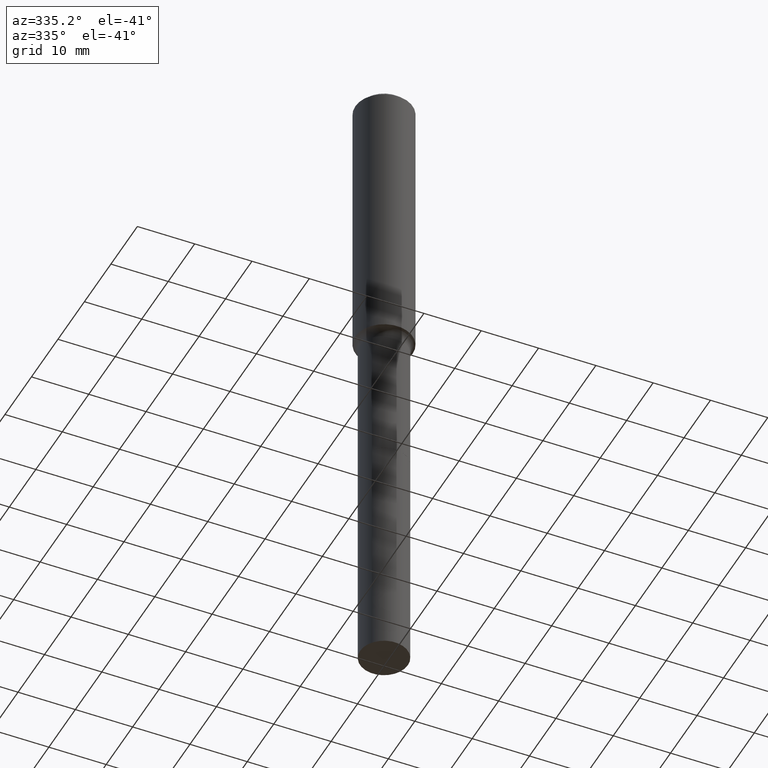
[diagram: clean part render]
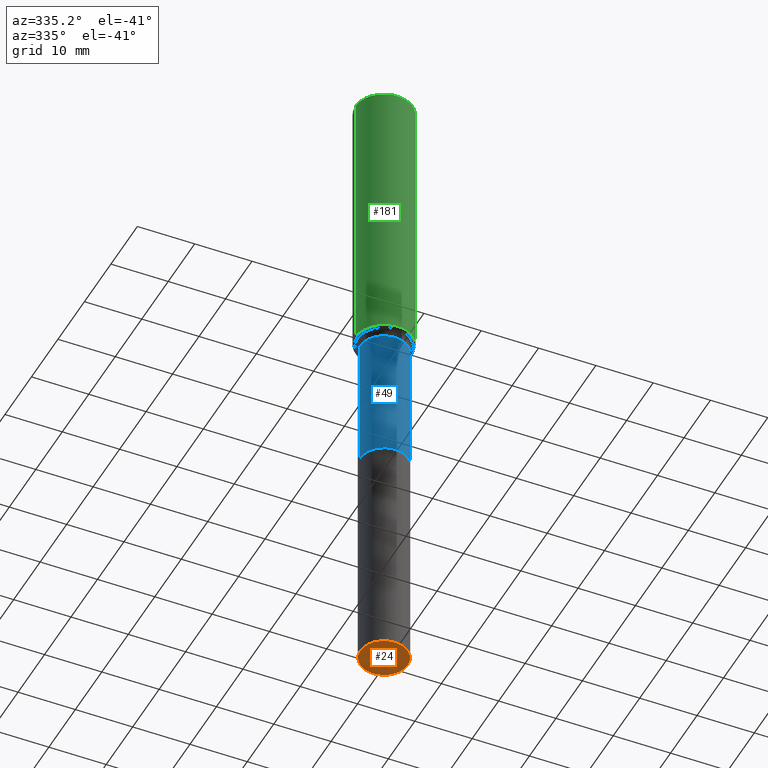
[diagram: same view with three faces highlighted in distinct colors, each labeled with its STEP entity id]
A machine part, auxiliary view with three faces highlighted in distinct colors.
Their STEP definitions:

[orange] entity #24 — the highlighted planar face has unit normal (0, -0, -1).
#17 = DIRECTION ( 'NONE',  ( 2.438088387897960049E-29, -3.491481338843145188E-15, -1.000000000000000000 ) ) ;
#24 = ADVANCED_FACE ( 'NONE', ( #415 ), #375, .T. ) ;
#26 = AXIS2_PLACEMENT_3D ( 'NONE', #302, #17, #139 ) ;
#51 = AXIS2_PLACEMENT_3D ( 'NONE', #76, #67, #235 ) ;
#67 = DIRECTION ( 'NONE',  ( -2.445468806185136597E-29, 3.491481338843145583E-15, 1.000000000000000000 ) ) ;
#73 = CARTESIAN_POINT ( 'NONE',  ( 0.1640500000000000014, -1.695358593702065635E-14, -4.527599999999999625 ) ) ;
#76 = CARTESIAN_POINT ( 'NONE',  ( 1.107210456688382298E-28, -1.580803090974622389E-14, -4.527599999999999625 ) ) ;
#81 = EDGE_LOOP ( 'NONE', ( #367, #265 ) ) ;
#139 = DIRECTION ( 'NONE',  ( -1.000000000000000000, 6.982962677686265922E-15, -4.876176775795935793E-29 ) ) ;
#172 = VERTEX_POINT ( 'NONE', #73 ) ;
#189 = EDGE_CURVE ( 'NONE', #406, #172, #294, .T. ) ;
#191 = AXIS2_PLACEMENT_3D ( 'NONE', #248, #205, #439 ) ;
#205 = DIRECTION ( 'NONE',  ( -2.445468806185136597E-29, 3.491481338843145583E-15, 1.000000000000000000 ) ) ;
#219 = EDGE_CURVE ( 'NONE', #172, #406, #409, .T. ) ;
#235 = DIRECTION ( 'NONE',  ( 1.000000000000000000, -6.982962677686270655E-15, 0.000000000000000000 ) ) ;
#248 = CARTESIAN_POINT ( 'NONE',  ( 1.107210456688382298E-28, -1.580803090974622389E-14, -4.527599999999999625 ) ) ;
#265 = ORIENTED_EDGE ( 'NONE', *, *, #189, .F. ) ;
#294 = CIRCLE ( 'NONE', #51, 0.1640500000000000014 ) ;
#302 = CARTESIAN_POINT ( 'NONE',  ( 1.107210456688382298E-28, -1.580803090974622389E-14, -4.527599999999999625 ) ) ;
#367 = ORIENTED_EDGE ( 'NONE', *, *, #219, .F. ) ;
#375 = PLANE ( 'NONE',  #26 ) ;
#406 = VERTEX_POINT ( 'NONE', #456 ) ;
#409 = CIRCLE ( 'NONE', #191, 0.1640500000000000014 ) ;
#415 = FACE_OUTER_BOUND ( 'NONE', #81, .T. ) ;
#439 = DIRECTION ( 'NONE',  ( 1.000000000000000000, -6.982962677686270655E-15, 0.000000000000000000 ) ) ;
#456 = CARTESIAN_POINT ( 'NONE',  ( -0.1640500000000000014, -1.185967492467379220E-14, -4.527599999999999625 ) ) ;

[blue] entity #49 — the highlighted cylindrical surface (edge-blend (fillet) strip) has radius 4.1669 mm, axis along (-0, 0, 1).
#1 = AXIS2_PLACEMENT_3D ( 'NONE', #466, #429, #71 ) ;
#11 = VERTEX_POINT ( 'NONE', #298 ) ;
#29 = DIRECTION ( 'NONE',  ( 1.000000000000000000, -6.982962677686267499E-15, 0.000000000000000000 ) ) ;
#34 = CARTESIAN_POINT ( 'NONE',  ( 0.1640500000000000014, -1.145555027274432057E-15, 7.999368000693231542E-30 ) ) ;
#46 = ORIENTED_EDGE ( 'NONE', *, *, #82, .F. ) ;
#49 = ADVANCED_FACE ( 'NONE', ( #491 ), #135, .T. ) ;
#71 = DIRECTION ( 'NONE',  ( 1.000000000000000000, -6.982962677686269077E-15, 0.000000000000000000 ) ) ;
#82 = EDGE_CURVE ( 'NONE', #293, #126, #360, .T. ) ;
#99 = DIRECTION ( 'NONE',  ( -2.445468806185136597E-29, 3.491481338843145583E-15, 1.000000000000000000 ) ) ;
#105 = EDGE_CURVE ( 'NONE', #11, #290, #281, .T. ) ;
#110 = DIRECTION ( 'NONE',  ( -2.445468806185136597E-29, 3.491481338843145583E-15, 1.000000000000000000 ) ) ;
#112 = DIRECTION ( 'NONE',  ( -2.445468806185136877E-29, 3.491481338843145188E-15, 1.000000000000000000 ) ) ;
#119 = CARTESIAN_POINT ( 'NONE',  ( 4.909523175297278955E-29, -7.009497935861498019E-15, -2.007599999999999607 ) ) ;
#122 = EDGE_CURVE ( 'NONE', #293, #11, #190, .T. ) ;
#126 = VERTEX_POINT ( 'NONE', #503 ) ;
#135 = CYLINDRICAL_SURFACE ( 'NONE', #272, 0.1640500000000000014 ) ;
#147 = DIRECTION ( 'NONE',  ( 1.000000000000000000, -6.982962677686266711E-15, 4.876176775795935232E-29 ) ) ;
#152 = DIRECTION ( 'NONE',  ( -2.445468806185136877E-29, 3.491481338843145188E-15, 1.000000000000000000 ) ) ;
#190 = CIRCLE ( 'NONE', #1, 0.1640500000000000291 ) ;
#204 = CARTESIAN_POINT ( 'NONE',  ( -0.1640500000000000014, 1.165645358014444365E-15, -8.069513015563172164E-30 ) ) ;
#209 = VECTOR ( 'NONE', #152, 39.37007874015748143 ) ;
#215 = ORIENTED_EDGE ( 'NONE', *, *, #105, .T. ) ;
#220 = AXIS2_PLACEMENT_3D ( 'NONE', #119, #110, #29 ) ;
#230 = ORIENTED_EDGE ( 'NONE', *, *, #122, .T. ) ;
#238 = VECTOR ( 'NONE', #112, 39.37007874015748143 ) ;
#272 = AXIS2_PLACEMENT_3D ( 'NONE', #449, #99, #147 ) ;
#281 = LINE ( 'NONE', #34, #238 ) ;
#290 = VERTEX_POINT ( 'NONE', #345 ) ;
#293 = VERTEX_POINT ( 'NONE', #502 ) ;
#298 = CARTESIAN_POINT ( 'NONE',  ( 0.1640500000000000291, -1.138641894223526137E-14, -2.933099999999999152 ) ) ;
#340 = CIRCLE ( 'NONE', #220, 0.1640499999999999181 ) ;
#345 = CARTESIAN_POINT ( 'NONE',  ( 0.1640499999999999181, -8.155052963135929682E-15, -2.007599999999999607 ) ) ;
#360 = LINE ( 'NONE', #204, #209 ) ;
#379 = EDGE_LOOP ( 'NONE', ( #46, #230, #215, #442 ) ) ;
#429 = DIRECTION ( 'NONE',  ( -2.445468806185136597E-29, 3.491481338843145583E-15, 1.000000000000000000 ) ) ;
#442 = ORIENTED_EDGE ( 'NONE', *, *, #487, .F. ) ;
#449 = CARTESIAN_POINT ( 'NONE',  ( 0.000000000000000000, 0.000000000000000000, 0.000000000000000000 ) ) ;
#466 = CARTESIAN_POINT ( 'NONE',  ( 7.172804555421622324E-29, -1.024086391496082892E-14, -2.933099999999999152 ) ) ;
#487 = EDGE_CURVE ( 'NONE', #126, #290, #340, .T. ) ;
#491 = FACE_OUTER_BOUND ( 'NONE', #379, .T. ) ;
#502 = CARTESIAN_POINT ( 'NONE',  ( -0.1640500000000000291, -7.459535567396716936E-15, -2.933099999999999152 ) ) ;
#503 = CARTESIAN_POINT ( 'NONE',  ( -0.1640499999999999181, -7.459535567396718514E-15, -2.007599999999999607 ) ) ;

[green] entity #181 — the highlighted cylindrical surface (edge-blend (fillet) strip) has radius 5 mm, axis along (-0, 0, 1).
#8 = EDGE_CURVE ( 'NONE', #479, #458, #22, .T. ) ;
#13 = CARTESIAN_POINT ( 'NONE',  ( -0.1968500000000002470, -5.377959779402321474E-15, -1.940913468261994179 ) ) ;
#22 = LINE ( 'NONE', #101, #97 ) ;
#36 = CYLINDRICAL_SURFACE ( 'NONE', #287, 0.1968500000000001082 ) ;
#41 = FACE_OUTER_BOUND ( 'NONE', #94, .T. ) ;
#56 = ORIENTED_EDGE ( 'NONE', *, *, #202, .T. ) ;
#79 = CIRCLE ( 'NONE', #476, 0.1968500000000000250 ) ;
#94 = EDGE_LOOP ( 'NONE', ( #309, #56, #339, #103 ) ) ;
#97 = VECTOR ( 'NONE', #132, 39.37007874015748143 ) ;
#101 = CARTESIAN_POINT ( 'NONE',  ( 0.1968500000000001082, -1.374596203102542397E-15, 9.598753983154305062E-30 ) ) ;
#103 = ORIENTED_EDGE ( 'NONE', *, *, #143, .F. ) ;
#132 = DIRECTION ( 'NONE',  ( -2.445468806185136877E-29, 3.491481338843145188E-15, 1.000000000000000000 ) ) ;
#143 = EDGE_CURVE ( 'NONE', #274, #458, #79, .T. ) ;
#145 = EDGE_CURVE ( 'NONE', #344, #274, #321, .T. ) ;
#167 = DIRECTION ( 'NONE',  ( 1.000000000000000000, -6.982962677686269866E-15, 0.000000000000000000 ) ) ;
#181 = ADVANCED_FACE ( 'NONE', ( #41 ), #36, .T. ) ;
#198 = CARTESIAN_POINT ( 'NONE',  ( 0.000000000000000000, 0.000000000000000000, 0.000000000000000000 ) ) ;
#202 = EDGE_CURVE ( 'NONE', #344, #479, #258, .T. ) ;
#241 = DIRECTION ( 'NONE',  ( -2.445468806185136597E-29, 3.491481338843145583E-15, 1.000000000000000000 ) ) ;
#258 = CIRCLE ( 'NONE', #303, 0.1968500000000002470 ) ;
#274 = VERTEX_POINT ( 'NONE', #490 ) ;
#287 = AXIS2_PLACEMENT_3D ( 'NONE', #198, #323, #433 ) ;
#291 = DIRECTION ( 'NONE',  ( -2.445468806185136597E-29, 3.491481338843145583E-15, 1.000000000000000000 ) ) ;
#303 = AXIS2_PLACEMENT_3D ( 'NONE', #464, #291, #167 ) ;
#309 = ORIENTED_EDGE ( 'NONE', *, *, #145, .F. ) ;
#321 = LINE ( 'NONE', #391, #331 ) ;
#323 = DIRECTION ( 'NONE',  ( -2.445468806185136597E-29, 3.491481338843145583E-15, 1.000000000000000000 ) ) ;
#331 = VECTOR ( 'NONE', #357, 39.37007874015748143 ) ;
#339 = ORIENTED_EDGE ( 'NONE', *, *, #8, .T. ) ;
#344 = VERTEX_POINT ( 'NONE', #13 ) ;
#349 = CARTESIAN_POINT ( 'NONE',  ( 0.1968500000000002470, -8.151259357848624026E-15, -1.940913468261994179 ) ) ;
#357 = DIRECTION ( 'NONE',  ( -2.445468806185136877E-29, 3.491481338843145188E-15, 1.000000000000000000 ) ) ;
#391 = CARTESIAN_POINT ( 'NONE',  ( -0.1968500000000001082, 1.398703375343757985E-15, -9.682923725166787881E-30 ) ) ;
#424 = CARTESIAN_POINT ( 'NONE',  ( 9.627810689950950651E-31, -1.374596203102556054E-16, -0.03937000000000027977 ) ) ;
#430 = DIRECTION ( 'NONE',  ( 1.000000000000000000, -6.982962677686265922E-15, 0.000000000000000000 ) ) ;
#433 = DIRECTION ( 'NONE',  ( 1.000000000000000000, -6.982962677686266711E-15, 4.876176775795935793E-29 ) ) ;
#458 = VERTEX_POINT ( 'NONE', #508 ) ;
#464 = CARTESIAN_POINT ( 'NONE',  ( 4.746443342139311740E-29, -6.776663154746080840E-15, -1.940913468261994179 ) ) ;
#476 = AXIS2_PLACEMENT_3D ( 'NONE', #424, #241, #430 ) ;
#479 = VERTEX_POINT ( 'NONE', #349 ) ;
#490 = CARTESIAN_POINT ( 'NONE',  ( -0.1968500000000000250, -2.058358012184409634E-15, -0.03937000000000027977 ) ) ;
#508 = CARTESIAN_POINT ( 'NONE',  ( 0.1968500000000000250, -1.512055823412797189E-15, -0.03937000000000027977 ) ) ;